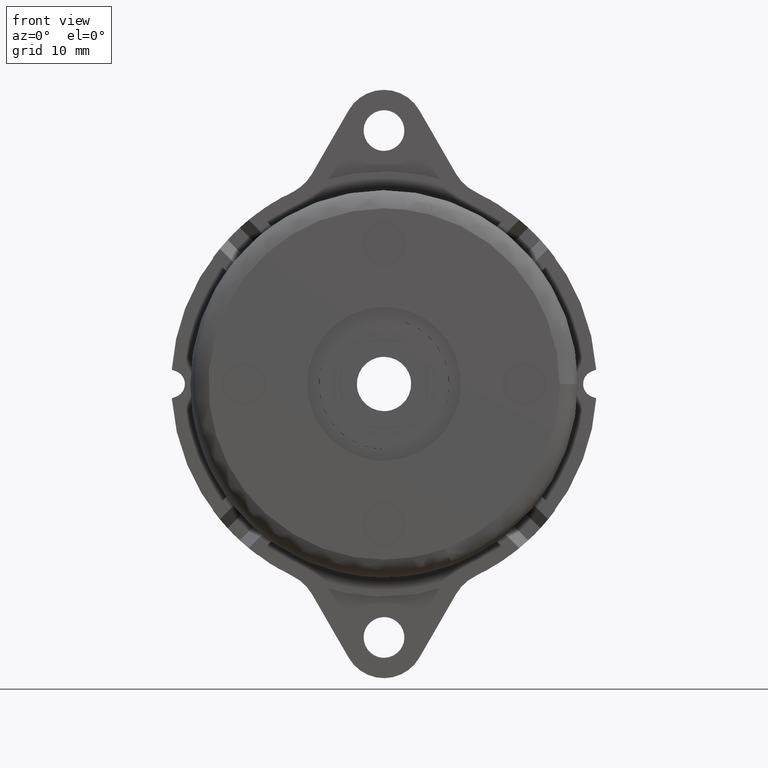
[diagram: clean part render]
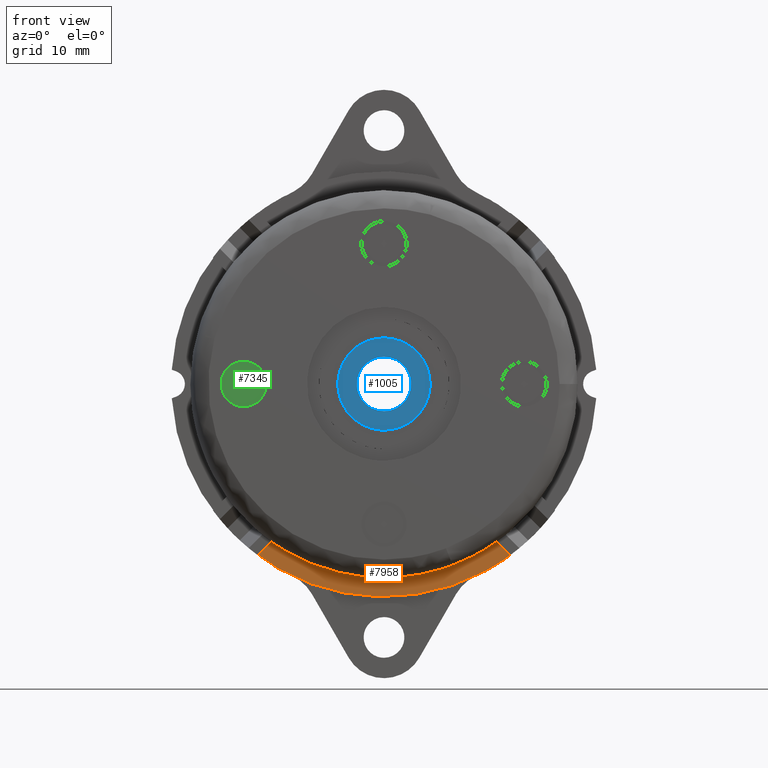
[diagram: same view with three faces highlighted in distinct colors, each labeled with its STEP entity id]
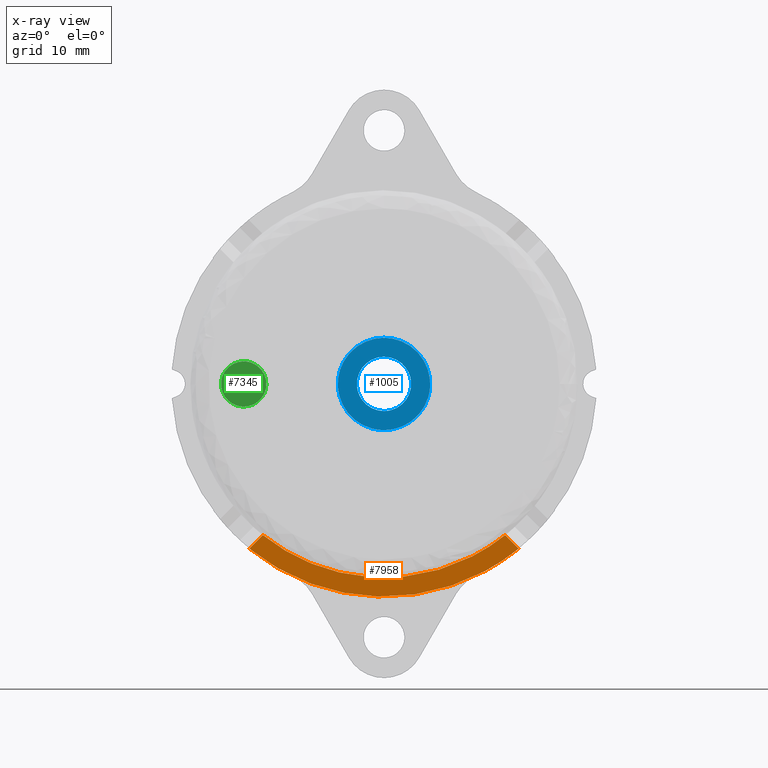
[diagram: x-ray of the same camera — body ghosted, the three highlighted faces saturated]
A machine part, front view with three faces highlighted in distinct colors.
The next image is the same camera in x-ray (body ghosted, the three faces saturated) — at least one of them is partly hidden behind the body in this view.
Their STEP definitions:

[orange] entity #7958 — the highlighted face is a freeform B-spline surface patch.
#3548=CARTESIAN_POINT('',(-4.938766150646446,-2.600005000000000,-20.822310510505670));
#3549=VERTEX_POINT('',#3548);
#3555=CARTESIAN_POINT('',(13.378870266796600,-2.600005000000000,-16.702272138371701));
#3556=VERTEX_POINT('',#3555);
#3557=CARTESIAN_POINT('',(-4.938766150646446,-2.600005000000001,-20.822310510505673));
#3558=CARTESIAN_POINT('',(5.225651178439737,-2.600005000000000,-23.233171161591436));
#3559=CARTESIAN_POINT('',(13.378870266796600,-2.600005000000000,-16.702272138371701));
#3567=(BOUNDED_CURVE()B_SPLINE_CURVE(2,(#3557,#3558,#3559),.UNSPECIFIED.,.F.,.U.)B_SPLINE_CURVE_WITH_KNOTS((3,3),(0.333437239850341,1.0),.UNSPECIFIED.)CURVE()GEOMETRIC_REPRESENTATION_ITEM()RATIONAL_B_SPLINE_CURVE((0.902420332479676,0.853676110736579,1.0))REPRESENTATION_ITEM(''));
#3568=EDGE_CURVE('',#3549,#3556,#3567,.T.);
#4629=CARTESIAN_POINT('',(-13.378870266796600,-2.600005000000000,-16.702272138371701));
#4630=VERTEX_POINT('',#4629);
#4636=CARTESIAN_POINT('',(-13.378870266796600,-2.600005000000000,-16.702272138371701));
#4637=CARTESIAN_POINT('',(-9.622161991558121,-2.600005000000000,-19.711474042477654));
#4638=CARTESIAN_POINT('',(-4.938766150646446,-2.600005000000001,-20.822310510505673));
#4646=(BOUNDED_CURVE()B_SPLINE_CURVE(2,(#4636,#4637,#4638),.UNSPECIFIED.,.F.,.U.)B_SPLINE_CURVE_WITH_KNOTS((3,3),(0.0,0.333437239850341),.UNSPECIFIED.)CURVE()GEOMETRIC_REPRESENTATION_ITEM()RATIONAL_B_SPLINE_CURVE((1.0,0.926803841022850,0.902420332479676))REPRESENTATION_ITEM(''));
#4647=EDGE_CURVE('',#4630,#3549,#4646,.T.);
#6620=CARTESIAN_POINT('',(-14.872014617590141,-2.600005000000000,-18.195416489165201));
#6621=VERTEX_POINT('',#6620);
#6627=CARTESIAN_POINT('',(-13.378870266796600,-2.600005000000000,-16.702272138371701));
#6628=CARTESIAN_POINT('',(-14.872014617590141,-2.600005000000000,-18.195416489165201));
#6629=QUASI_UNIFORM_CURVE('',1,(#6627,#6628),.UNSPECIFIED.,.F.,.U.);
#6630=EDGE_CURVE('',#4630,#6621,#6629,.T.);
#6687=CARTESIAN_POINT('',(14.872014617590120,-2.600005000000000,-18.195416489165201));
#6688=VERTEX_POINT('',#6687);
#6689=CARTESIAN_POINT('',(14.872014617590120,-2.600005000000000,-18.195416489165201));
#6690=CARTESIAN_POINT('',(13.378870266796600,-2.600005000000000,-16.702272138371701));
#6691=QUASI_UNIFORM_CURVE('',1,(#6689,#6690),.UNSPECIFIED.,.F.,.U.);
#6692=EDGE_CURVE('',#6688,#3556,#6691,.T.);
#7934=CARTESIAN_POINT('',(-16.357729378669021,-2.600005000000000,-23.839546469226740));
#7935=CARTESIAN_POINT('',(-16.357729378669021,-2.600005000000000,-16.362725973027061));
#7936=CARTESIAN_POINT('',(16.357729644601349,-2.600005000000000,-23.839546469226740));
#7937=CARTESIAN_POINT('',(16.357729644601349,-2.600005000000000,-16.362725973027061));
#7938=B_SPLINE_SURFACE_WITH_KNOTS('',1,1,((#7934,#7936),(#7935,#7937)),.UNSPECIFIED.,.F.,.F.,.U.,(2,2),(2,2),(0.0,7.476820496199680),(0.0,32.715459023270370),.UNSPECIFIED.);
#7939=ORIENTED_EDGE('',*,*,#6630,.T.);
#7940=CARTESIAN_POINT('',(-14.872014617590141,-2.600005000000000,-18.195416489165211));
#7941=CARTESIAN_POINT('',(-2.255141E-014,-2.600005000000000,-30.351050239979234));
#7942=CARTESIAN_POINT('',(14.872014617590120,-2.600005000000000,-18.195416489165229));
#7950=(BOUNDED_CURVE()B_SPLINE_CURVE(2,(#7940,#7941,#7942),.UNSPECIFIED.,.F.,.U.)CURVE()GEOMETRIC_REPRESENTATION_ITEM()QUASI_UNIFORM_CURVE()RATIONAL_B_SPLINE_CURVE((1.0,0.774273042092137,1.0))REPRESENTATION_ITEM(''));
#7951=EDGE_CURVE('',#6621,#6688,#7950,.T.);
#7952=ORIENTED_EDGE('',*,*,#7951,.T.);
#7953=ORIENTED_EDGE('',*,*,#6692,.T.);
#7954=ORIENTED_EDGE('',*,*,#3568,.F.);
#7955=ORIENTED_EDGE('',*,*,#4647,.F.);
#7956=EDGE_LOOP('',(#7939,#7952,#7953,#7954,#7955));
#7957=FACE_OUTER_BOUND('',#7956,.T.);
#7958=ADVANCED_FACE('',(#7957),#7938,.F.);

[blue] entity #1005 — the highlighted face is a freeform B-spline surface patch.
#252=CARTESIAN_POINT('',(-5.064348584442787,-9.500005000000000,0.601974596849690));
#253=VERTEX_POINT('',#252);
#254=CARTESIAN_POINT('',(0.0,-9.500005000000000,-5.100000000000001));
#255=VERTEX_POINT('',#254);
#256=CARTESIAN_POINT('',(-5.064348584442787,-9.500005000000000,0.601974596849690));
#257=CARTESIAN_POINT('',(-5.100000000000001,-9.500005000000000,0.302043010326023));
#258=CARTESIAN_POINT('',(-5.100000000000001,-9.500005000000000,0.0));
#259=CARTESIAN_POINT('',(-5.100000000000001,-9.500005000000000,-5.100000000000001));
#260=CARTESIAN_POINT('',(0.0,-9.500005000000000,-5.100000000000001));
#268=(BOUNDED_CURVE()B_SPLINE_CURVE(2,(#256,#257,#258,#259,#260),.UNSPECIFIED.,.F.,.U.)B_SPLINE_CURVE_WITH_KNOTS((3,2,3),(0.229562473508955,0.250000000000000,0.500000000000000),.UNSPECIFIED.)CURVE()GEOMETRIC_REPRESENTATION_ITEM()RATIONAL_B_SPLINE_CURVE((0.956026754174775,0.976055948325811,1.0,0.707106781186548,1.0))REPRESENTATION_ITEM(''));
#269=EDGE_CURVE('',#253,#255,#268,.T.);
#310=CARTESIAN_POINT('',(5.090487471944276,-9.500005000000000,-0.311347551746236));
#311=VERTEX_POINT('',#310);
#317=CARTESIAN_POINT('',(0.0,-9.500005000000000,-5.100000000000001));
#318=CARTESIAN_POINT('',(4.797600940995346,-9.500005000000000,-5.100000000000001));
#319=CARTESIAN_POINT('',(5.090487471944276,-9.500005000000000,-0.311347551746236));
#327=(BOUNDED_CURVE()B_SPLINE_CURVE(2,(#317,#318,#319),.UNSPECIFIED.,.F.,.U.)B_SPLINE_CURVE_WITH_KNOTS((3,3),(0.500000000000000,0.739332962233938),.UNSPECIFIED.)CURVE()GEOMETRIC_REPRESENTATION_ITEM()RATIONAL_B_SPLINE_CURVE((1.0,0.719603993292574,0.976072041655991))REPRESENTATION_ITEM(''));
#328=EDGE_CURVE('',#255,#311,#327,.T.);
#351=CARTESIAN_POINT('',(0.0,-9.500005000000000,5.100000000000001));
#352=VERTEX_POINT('',#351);
#353=CARTESIAN_POINT('',(0.0,-9.500005000000000,5.100000000000001));
#354=CARTESIAN_POINT('',(-4.529690082171431,-9.500005000000000,5.100000000000001));
#355=CARTESIAN_POINT('',(-5.064348584442787,-9.500005000000000,0.601974596849690));
#363=(BOUNDED_CURVE()B_SPLINE_CURVE(2,(#353,#354,#355),.UNSPECIFIED.,.F.,.U.)B_SPLINE_CURVE_WITH_KNOTS((3,3),(0.0,0.229562473508955),.UNSPECIFIED.)CURVE()GEOMETRIC_REPRESENTATION_ITEM()RATIONAL_B_SPLINE_CURVE((1.0,0.731050832860737,0.956026754174775))REPRESENTATION_ITEM(''));
#364=EDGE_CURVE('',#352,#253,#363,.T.);
#366=CARTESIAN_POINT('',(5.090487471944277,-9.500005000000000,-0.311347551746236));
#367=CARTESIAN_POINT('',(5.100000000000001,-9.500005000000000,-0.155819092941601));
#368=CARTESIAN_POINT('',(5.100000000000001,-9.500005000000000,0.0));
#369=CARTESIAN_POINT('',(5.100000000000001,-9.500005000000000,5.100000000000001));
#370=CARTESIAN_POINT('',(0.0,-9.500005000000000,5.100000000000001));
#378=(BOUNDED_CURVE()B_SPLINE_CURVE(2,(#366,#367,#368,#369,#370),.UNSPECIFIED.,.F.,.U.)B_SPLINE_CURVE_WITH_KNOTS((3,2,3),(0.739332962233937,0.750000000000000,1.0),.UNSPECIFIED.)CURVE()GEOMETRIC_REPRESENTATION_ITEM()RATIONAL_B_SPLINE_CURVE((0.976072041655990,0.987502787893973,1.0,0.707106781186548,1.0))REPRESENTATION_ITEM(''));
#379=EDGE_CURVE('',#311,#352,#378,.T.);
#620=CARTESIAN_POINT('',(0.0,-9.500005000000000,-3.0));
#621=VERTEX_POINT('',#620);
#622=CARTESIAN_POINT('',(-2.990752001186666,-9.500005000000002,-0.235377287345122));
#623=VERTEX_POINT('',#622);
#624=CARTESIAN_POINT('',(0.0,-9.500005000000000,-3.0));
#625=CARTESIAN_POINT('',(-2.773171474674032,-9.500005000000000,-3.000000000000000));
#626=CARTESIAN_POINT('',(-2.990752001186666,-9.500005000000002,-0.235377287345122));
#634=(BOUNDED_CURVE()B_SPLINE_CURVE(2,(#624,#625,#626),.UNSPECIFIED.,.F.,.U.)B_SPLINE_CURVE_WITH_KNOTS((3,3),(0.500000000000000,0.736331300614243),.UNSPECIFIED.)CURVE()GEOMETRIC_REPRESENTATION_ITEM()RATIONAL_B_SPLINE_CURVE((1.0,0.723120658626899,0.969723356133158))REPRESENTATION_ITEM(''));
#635=EDGE_CURVE('',#621,#623,#634,.T.);
#637=CARTESIAN_POINT('',(2.990752001186666,-9.500005000000000,0.235377287345122));
#638=VERTEX_POINT('',#637);
#639=CARTESIAN_POINT('',(2.990752001186666,-9.500005000000000,0.235377287345122));
#640=CARTESIAN_POINT('',(3.0,-9.500005000000000,0.117870321185345));
#641=CARTESIAN_POINT('',(3.0,-9.500005000000000,0.0));
#642=CARTESIAN_POINT('',(3.0,-9.500005000000000,-3.0));
#643=CARTESIAN_POINT('',(0.0,-9.500005000000000,-3.0));
#651=(BOUNDED_CURVE()B_SPLINE_CURVE(2,(#639,#640,#641,#642,#643),.UNSPECIFIED.,.F.,.U.)B_SPLINE_CURVE_WITH_KNOTS((3,2,3),(0.236331300614243,0.250000000000000,0.500000000000000),.UNSPECIFIED.)CURVE()GEOMETRIC_REPRESENTATION_ITEM()RATIONAL_B_SPLINE_CURVE((0.969723356133158,0.983986122559649,1.0,0.707106781186548,1.0))REPRESENTATION_ITEM(''));
#652=EDGE_CURVE('',#638,#621,#651,.T.);
#719=CARTESIAN_POINT('',(0.0,-9.500005000000000,3.0));
#720=VERTEX_POINT('',#719);
#721=CARTESIAN_POINT('',(-2.990752001186666,-9.500005000000002,-0.235377287345122));
#722=CARTESIAN_POINT('',(-3.0,-9.500005000000000,-0.117870321185345));
#723=CARTESIAN_POINT('',(-3.0,-9.500005000000000,0.0));
#724=CARTESIAN_POINT('',(-3.0,-9.500005000000000,3.0));
#725=CARTESIAN_POINT('',(0.0,-9.500005000000000,3.0));
#733=(BOUNDED_CURVE()B_SPLINE_CURVE(2,(#721,#722,#723,#724,#725),.UNSPECIFIED.,.F.,.U.)B_SPLINE_CURVE_WITH_KNOTS((3,2,3),(0.736331300614243,0.750000000000000,1.0),.UNSPECIFIED.)CURVE()GEOMETRIC_REPRESENTATION_ITEM()RATIONAL_B_SPLINE_CURVE((0.969723356133158,0.983986122559649,1.0,0.707106781186548,1.0))REPRESENTATION_ITEM(''));
#734=EDGE_CURVE('',#623,#720,#733,.T.);
#768=CARTESIAN_POINT('',(0.0,-9.500005000000000,3.0));
#769=CARTESIAN_POINT('',(2.773171474674032,-9.500005000000002,3.0));
#770=CARTESIAN_POINT('',(2.990752001186666,-9.500005000000000,0.235377287345122));
#778=(BOUNDED_CURVE()B_SPLINE_CURVE(2,(#768,#769,#770),.UNSPECIFIED.,.F.,.U.)B_SPLINE_CURVE_WITH_KNOTS((3,3),(0.0,0.236331300614243),.UNSPECIFIED.)CURVE()GEOMETRIC_REPRESENTATION_ITEM()RATIONAL_B_SPLINE_CURVE((1.0,0.723120658626899,0.969723356133158))REPRESENTATION_ITEM(''));
#779=EDGE_CURVE('',#720,#638,#778,.T.);
#988=CARTESIAN_POINT('',(-5.609397604881207,-9.500005000000000,5.609489884480119));
#989=CARTESIAN_POINT('',(5.609365868984144,-9.500005000000000,5.609489884480119));
#990=CARTESIAN_POINT('',(-5.609397604881207,-9.500005000000000,-5.609490249260545));
#991=CARTESIAN_POINT('',(5.609365868984144,-9.500005000000000,-5.609490249260545));
#992=B_SPLINE_SURFACE_WITH_KNOTS('',1,1,((#988,#990),(#989,#991)),.UNSPECIFIED.,.F.,.F.,.U.,(2,2),(2,2),(0.0,11.218763473865350),(0.0,11.218980133740670),.UNSPECIFIED.);
#993=ORIENTED_EDGE('',*,*,#364,.T.);
#994=ORIENTED_EDGE('',*,*,#269,.T.);
#995=ORIENTED_EDGE('',*,*,#328,.T.);
#996=ORIENTED_EDGE('',*,*,#379,.T.);
#997=EDGE_LOOP('',(#993,#994,#995,#996));
#998=FACE_OUTER_BOUND('',#997,.T.);
#999=ORIENTED_EDGE('',*,*,#779,.T.);
#1000=ORIENTED_EDGE('',*,*,#652,.T.);
#1001=ORIENTED_EDGE('',*,*,#635,.T.);
#1002=ORIENTED_EDGE('',*,*,#734,.T.);
#1003=EDGE_LOOP('',(#999,#1000,#1001,#1002));
#1004=FACE_BOUND('',#1003,.T.);
#1005=ADVANCED_FACE('',(#998,#1004),#992,.F.);

[green] entity #7345 — the highlighted face is a freeform B-spline surface patch.
#2387=CARTESIAN_POINT('',(-17.982524251983300,-10.200005000003401,0.295081917950086));
#2388=VERTEX_POINT('',#2387);
#2389=CARTESIAN_POINT('',(-15.500000000000000,-10.200004999999960,-2.500000000000000));
#2390=VERTEX_POINT('',#2389);
#2391=CARTESIAN_POINT('',(-17.982524251983300,-10.200005000003404,0.295081917950086));
#2392=CARTESIAN_POINT('',(-17.999999999999996,-10.200004999999960,0.148058445391806));
#2393=CARTESIAN_POINT('',(-18.0,-10.200004999999960,0.0));
#2394=CARTESIAN_POINT('',(-18.000000000000007,-10.200004999999960,-2.500000000000000));
#2395=CARTESIAN_POINT('',(-15.500000000000000,-10.200004999999960,-2.500000000000000));
#2403=(BOUNDED_CURVE()B_SPLINE_CURVE(2,(#2391,#2392,#2393,#2394,#2395),.UNSPECIFIED.,.F.,.U.)B_SPLINE_CURVE_WITH_KNOTS((3,2,3),(0.229562723269901,0.250000000000000,0.500000000000000),.UNSPECIFIED.)CURVE()GEOMETRIC_REPRESENTATION_ITEM()RATIONAL_B_SPLINE_CURVE((0.956027243717034,0.976056240938960,1.0,0.707106781186548,1.0))REPRESENTATION_ITEM(''));
#2404=EDGE_CURVE('',#2388,#2390,#2403,.T.);
#2445=CARTESIAN_POINT('',(-13.004663003949251,-10.200004999999960,-0.152621348901246));
#2446=VERTEX_POINT('',#2445);
#2452=CARTESIAN_POINT('',(-15.500000000000000,-10.200004999999960,-2.500000000000000));
#2453=CARTESIAN_POINT('',(-13.148234832856820,-10.200004999999960,-2.500000000000000));
#2454=CARTESIAN_POINT('',(-13.004663003949259,-10.200004999999960,-0.152621348901246));
#2462=(BOUNDED_CURVE()B_SPLINE_CURVE(2,(#2452,#2453,#2454),.UNSPECIFIED.,.F.,.U.)B_SPLINE_CURVE_WITH_KNOTS((3,3),(0.500000000000000,0.739332962233103),.UNSPECIFIED.)CURVE()GEOMETRIC_REPRESENTATION_ITEM()RATIONAL_B_SPLINE_CURVE((1.0,0.719603993293552,0.976072041654202))REPRESENTATION_ITEM(''));
#2463=EDGE_CURVE('',#2390,#2446,#2462,.T.);
#2490=CARTESIAN_POINT('',(-15.500000000000000,-10.200004999999960,2.500000000000000));
#2491=VERTEX_POINT('',#2490);
#2492=CARTESIAN_POINT('',(-15.500000000000000,-10.200004999999960,2.500000000000000));
#2493=CARTESIAN_POINT('',(-17.720439619356856,-10.200004999999960,2.500000000000000));
#2494=CARTESIAN_POINT('',(-17.982524251983300,-10.200005000003404,0.295081917950086));
#2502=(BOUNDED_CURVE()B_SPLINE_CURVE(2,(#2492,#2493,#2494),.UNSPECIFIED.,.F.,.U.)B_SPLINE_CURVE_WITH_KNOTS((3,3),(0.0,0.229562723269901),.UNSPECIFIED.)CURVE()GEOMETRIC_REPRESENTATION_ITEM()RATIONAL_B_SPLINE_CURVE((1.0,0.731050540247588,0.956027243717034))REPRESENTATION_ITEM(''));
#2503=EDGE_CURVE('',#2491,#2388,#2502,.T.);
#2505=CARTESIAN_POINT('',(-13.004663003949259,-10.200004999999960,-0.152621348901246));
#2506=CARTESIAN_POINT('',(-12.999999999999996,-10.200004999999955,-0.076381908310756));
#2507=CARTESIAN_POINT('',(-13.0,-10.200004999999960,0.0));
#2508=CARTESIAN_POINT('',(-13.000000000000002,-10.200004999999960,2.500000000000000));
#2509=CARTESIAN_POINT('',(-15.500000000000000,-10.200004999999960,2.500000000000000));
#2517=(BOUNDED_CURVE()B_SPLINE_CURVE(2,(#2505,#2506,#2507,#2508,#2509),.UNSPECIFIED.,.F.,.U.)B_SPLINE_CURVE_WITH_KNOTS((3,2,3),(0.739332962233103,0.750000000000000,1.0),.UNSPECIFIED.)CURVE()GEOMETRIC_REPRESENTATION_ITEM()RATIONAL_B_SPLINE_CURVE((0.976072041654202,0.987502787892996,1.0,0.707106781186548,1.0))REPRESENTATION_ITEM(''));
#2518=EDGE_CURVE('',#2446,#2491,#2517,.T.);
#7334=CARTESIAN_POINT('',(-18.249705112839258,-10.200005000000001,2.749749990309030));
#7335=CARTESIAN_POINT('',(-12.750311203932240,-10.200005000000001,2.749749990309030));
#7336=CARTESIAN_POINT('',(-18.249705112839258,-10.200005000000001,-2.749750124419481));
#7337=CARTESIAN_POINT('',(-12.750311203932240,-10.200005000000001,-2.749750124419481));
#7338=B_SPLINE_SURFACE_WITH_KNOTS('',1,1,((#7334,#7336),(#7335,#7337)),.UNSPECIFIED.,.F.,.F.,.U.,(2,2),(2,2),(0.0,5.499393908907019),(0.0,5.499500114728511),.UNSPECIFIED.);
#7339=ORIENTED_EDGE('',*,*,#2503,.T.);
#7340=ORIENTED_EDGE('',*,*,#2404,.T.);
#7341=ORIENTED_EDGE('',*,*,#2463,.T.);
#7342=ORIENTED_EDGE('',*,*,#2518,.T.);
#7343=EDGE_LOOP('',(#7339,#7340,#7341,#7342));
#7344=FACE_OUTER_BOUND('',#7343,.T.);
#7345=ADVANCED_FACE('',(#7344),#7338,.F.);